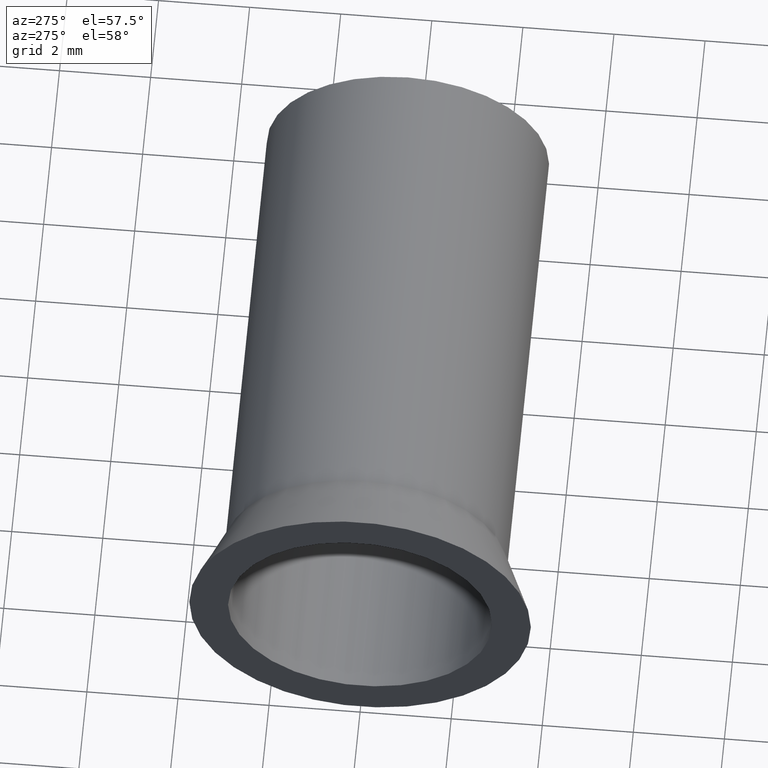
[diagram: clean part render]
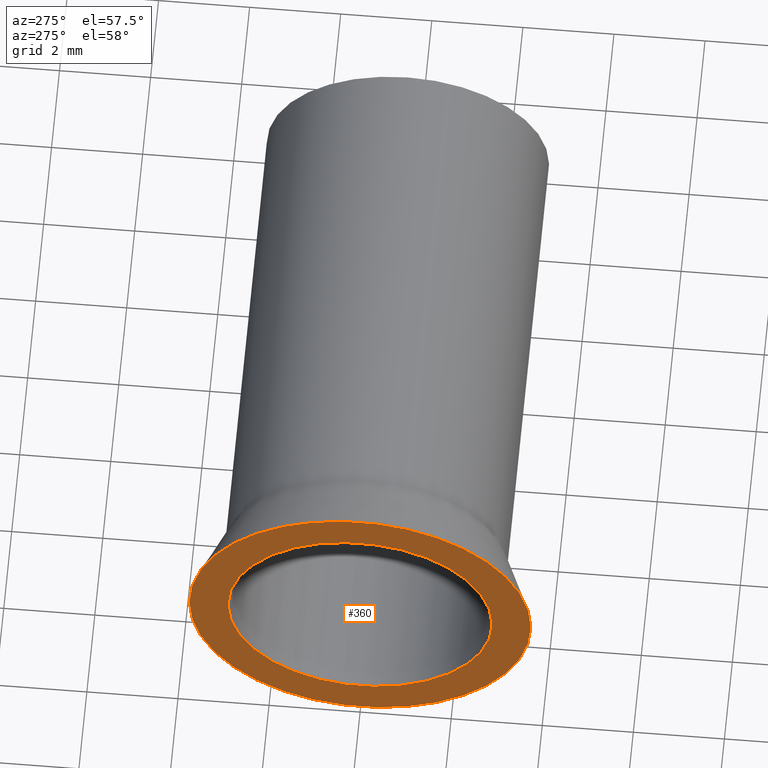
[diagram: same view with one face highlighted and labeled with its STEP entity id]
A machine part, auxiliary view. The second image highlights one B-rep face of the part: STEP entity #360.
In plain terms, the highlighted planar face has unit normal (-1, 0, 0).
Its self-contained STEP definition (entity closure, byte-faithful):
#10=CARTESIAN_POINT('',(0.,3.325,0.));
#20=DIRECTION('',(-1.,0.,0.));
#30=DIRECTION('',(0.,1.,0.));
#40=AXIS2_PLACEMENT_3D('',#10,#20,#30);
#50=PLANE('',#40);
#60=CARTESIAN_POINT('',(0.,0.,0.));
#70=DIRECTION('',(1.,0.,0.));
#80=DIRECTION('',(0.,1.,0.));
#90=AXIS2_PLACEMENT_3D('',#60,#70,#80);
#100=CIRCLE('',#90,2.9);
#110=CARTESIAN_POINT('',(0.,2.9,0.));
#120=VERTEX_POINT('',#110);
#130=CARTESIAN_POINT('',(0.,-2.9,-3.55147571752732E-16));
#140=VERTEX_POINT('',#130);
#150=EDGE_CURVE('',#120,#140,#100,.T.);
#160=ORIENTED_EDGE('',*,*,#150,.T.);
#170=EDGE_CURVE('',#140,#120,#100,.T.);
#180=ORIENTED_EDGE('',*,*,#170,.T.);
#190=EDGE_LOOP('',(#180,#160));
#200=FACE_BOUND('',#190,.T.);
#210=CARTESIAN_POINT('',(0.,0.,0.));
#220=DIRECTION('',(1.,0.,0.));
#230=DIRECTION('',(0.,1.,0.));
#240=AXIS2_PLACEMENT_3D('',#210,#220,#230);
#250=CIRCLE('',#240,3.75);
#260=CARTESIAN_POINT('',(0.,3.75,0.));
#270=VERTEX_POINT('',#260);
#280=CARTESIAN_POINT('',(4.1036458038222E-32,-3.75,-4.59242549680258E-16
));
#290=VERTEX_POINT('',#280);
#300=EDGE_CURVE('',#270,#290,#250,.T.);
#310=ORIENTED_EDGE('',*,*,#300,.F.);
#320=EDGE_CURVE('',#290,#270,#250,.T.);
#330=ORIENTED_EDGE('',*,*,#320,.F.);
#340=EDGE_LOOP('',(#330,#310));
#350=FACE_OUTER_BOUND('',#340,.T.);
#360=ADVANCED_FACE('',(#200,#350),#50,.T.);